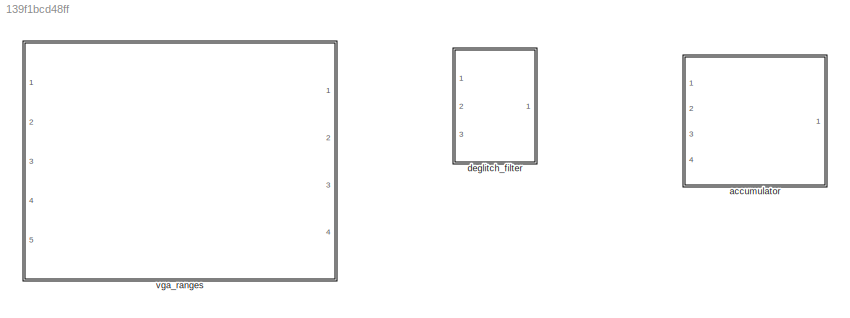
MODEL slx_139f1bcd48ff
KIND library
CONFIG AbsTol = auto
CONFIG EnableMultiTasking = off
CONFIG FixedStep = auto
CONFIG MaxStep = auto
CONFIG MinStep = auto
CONFIG RelTol = 1e-3
CONFIG SampleTimeConstraint = Unconstrained
CONFIG Solver = VariableStepAuto
CONFIG SolverName = VariableStepAuto
CONFIG StartTime = 0.0
CONFIG StopTime = 10.0
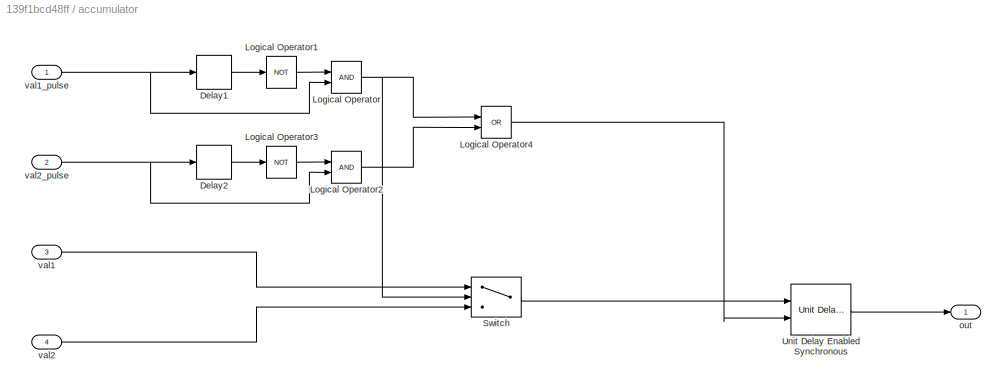
BLOCK [SubSystem] accumulator
  Ports = [4, 1]
  RequestExecContextInheritance = off
BLOCK [Delay] accumulator/Delay1
  DelayLength = 1
  InputPortMap = u0
  Ports = [1, 1]
BLOCK [Delay] accumulator/Delay2
  DelayLength = 1
  InputPortMap = u0
  Ports = [1, 1]
BLOCK [Logic] accumulator/Logical Operator
  AllPortsSameDT = off
  IconShape = distinctive
  OutDataTypeStr = boolean
  Ports = [2, 1]
BLOCK [Logic] accumulator/Logical Operator1
  AllPortsSameDT = off
  IconShape = distinctive
  Operator = NOT
  OutDataTypeStr = boolean
  Ports = [1, 1]
BLOCK [Logic] accumulator/Logical Operator2
  AllPortsSameDT = off
  IconShape = distinctive
  OutDataTypeStr = boolean
  Ports = [2, 1]
BLOCK [Logic] accumulator/Logical Operator3
  AllPortsSameDT = off
  IconShape = distinctive
  Operator = NOT
  OutDataTypeStr = boolean
  Ports = [1, 1]
BLOCK [Logic] accumulator/Logical Operator4
  AllPortsSameDT = off
  IconShape = distinctive
  Operator = OR
  OutDataTypeStr = boolean
  Ports = [2, 1]
BLOCK [Switch] accumulator/Switch
  InputSameDT = off
  SaturateOnIntegerOverflow = off
BLOCK [Reference] accumulator/Unit Delay Enabled Synchronous  REF=hdlsllib/Discrete/Unit Delay Enabled
Synchronous
  Ports = [2, 1]
  SourceBlock = hdlsllib/Discrete/Unit Delay Enabled\nSynchronous
  SourceProductBaseCode = SL
  SourceProductName = Simulink
  SourceType = Unit Delay Enabled Synchronous
BLOCK [Outport] accumulator/out
  IconDisplay = Port number
  VectorParamsAs1DForOutWhenUnconnected = off
BLOCK [Inport] accumulator/val1
  IconDisplay = Port number
  Port = 3
BLOCK [Inport] accumulator/val1_pulse
  IconDisplay = Port number
BLOCK [Inport] accumulator/val2
  IconDisplay = Port number
  Port = 4
BLOCK [Inport] accumulator/val2_pulse
  IconDisplay = Port number
  Port = 2
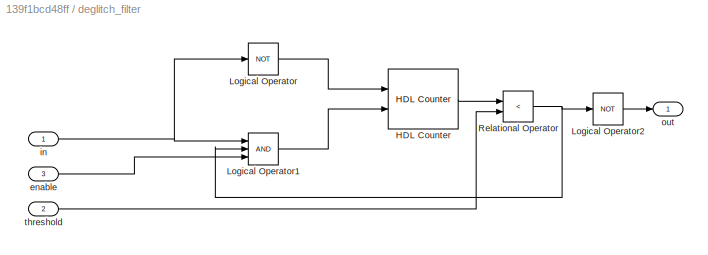
BLOCK [SubSystem] deglitch_filter
  Ports = [3, 1]
  RequestExecContextInheritance = off
BLOCK [Reference] deglitch_filter/HDL Counter  REF=hdlsllib/Sources/HDL Counter
  Ports = [2, 1]
  SourceBlock = hdlsllib/Sources/HDL Counter
  SourceProductBaseCode = SL
  SourceProductName = Simulink
  SourceType = HDL Counter
BLOCK [Logic] deglitch_filter/Logical Operator
  AllPortsSameDT = off
  IconShape = distinctive
  Operator = NOT
  OutDataTypeStr = boolean
  Ports = [1, 1]
BLOCK [Logic] deglitch_filter/Logical Operator1
  AllPortsSameDT = off
  IconShape = distinctive
  Inputs = 3
  OutDataTypeStr = boolean
  Ports = [3, 1]
BLOCK [Logic] deglitch_filter/Logical Operator2
  AllPortsSameDT = off
  IconShape = distinctive
  Operator = NOT
  OutDataTypeStr = boolean
  Ports = [1, 1]
BLOCK [RelationalOperator] deglitch_filter/Relational Operator
  InputSameDT = off
  Operator = <
  OutDataTypeStr = boolean
  Ports = [2, 1]
BLOCK [Inport] deglitch_filter/enable 
  IconDisplay = Port number
  Port = 3
BLOCK [Inport] deglitch_filter/in
  IconDisplay = Port number
BLOCK [Outport] deglitch_filter/out
  IconDisplay = Port number
  VectorParamsAs1DForOutWhenUnconnected = off
BLOCK [Inport] deglitch_filter/threshold
  IconDisplay = Port number
  Port = 2
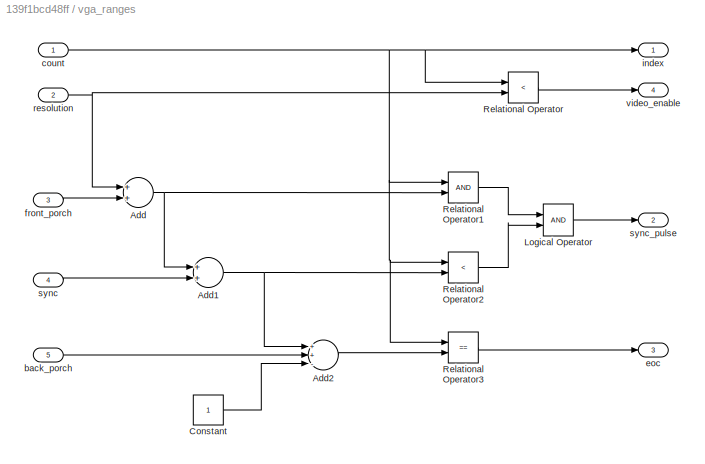
BLOCK [SubSystem] vga_ranges
  Ports = [5, 4]
  RequestExecContextInheritance = off
BLOCK [Sum] vga_ranges/Add
  InputSameDT = off
  OutDataTypeStr = Inherit: Inherit via internal rule
  Ports = [2, 1]
  SaturateOnIntegerOverflow = off
BLOCK [Sum] vga_ranges/Add1
  InputSameDT = off
  OutDataTypeStr = Inherit: Inherit via internal rule
  Ports = [2, 1]
  SaturateOnIntegerOverflow = off
BLOCK [Sum] vga_ranges/Add2
  InputSameDT = off
  Inputs = ++-
  OutDataTypeStr = Inherit: Inherit via internal rule
  Ports = [3, 1]
  SaturateOnIntegerOverflow = off
BLOCK [Constant] vga_ranges/Constant
  OutDataTypeStr = Inherit: Inherit via back propagation
  SampleTime = -1
BLOCK [Logic] vga_ranges/Logical Operator
  AllPortsSameDT = off
  IconShape = distinctive
  OutDataTypeStr = boolean
  Ports = [2, 1]
BLOCK [RelationalOperator] vga_ranges/Relational Operator
  InputSameDT = off
  Operator = <
  OutDataTypeStr = boolean
  Ports = [2, 1]
  RndMeth = Simplest
BLOCK [RelationalOperator] vga_ranges/Relational Operator1
  InputSameDT = off
  OutDataTypeStr = boolean
  Ports = [2, 1]
  RndMeth = Simplest
BLOCK [RelationalOperator] vga_ranges/Relational Operator2
  InputSameDT = off
  Operator = <
  OutDataTypeStr = boolean
  Ports = [2, 1]
  RndMeth = Simplest
BLOCK [RelationalOperator] vga_ranges/Relational Operator3
  InputSameDT = off
  Operator = ==
  OutDataTypeStr = boolean
  Ports = [2, 1]
  RndMeth = Simplest
BLOCK [Inport] vga_ranges/back_porch
  IconDisplay = Port number
  Port = 5
BLOCK [Inport] vga_ranges/count 
  IconDisplay = Port number
BLOCK [Outport] vga_ranges/eoc 
  IconDisplay = Port number
  Port = 3
BLOCK [Inport] vga_ranges/front_porch
  IconDisplay = Port number
  Port = 3
BLOCK [Outport] vga_ranges/index 
  IconDisplay = Port number
BLOCK [Inport] vga_ranges/resolution
  IconDisplay = Port number
  Port = 2
BLOCK [Inport] vga_ranges/sync 
  IconDisplay = Port number
  Port = 4
BLOCK [Outport] vga_ranges/sync_pulse 
  IconDisplay = Port number
  Port = 2
BLOCK [Outport] vga_ranges/video_enable
  IconDisplay = Port number
  Port = 4
LINE accumulator/Delay1:1 -> accumulator/Logical Operator1:1
LINE accumulator/Delay2:1 -> accumulator/Logical Operator3:1
LINE accumulator/Logical Operator1:1 -> accumulator/Logical Operator:1
LINE accumulator/Logical Operator2:1 -> accumulator/Logical Operator4:2
LINE accumulator/Logical Operator3:1 -> accumulator/Logical Operator2:1
LINE accumulator/Logical Operator4:1 -> accumulator/Unit Delay Enabled Synchronous:2
NET accumulator/Logical Operator:1 -> accumulator/Logical Operator4:1, accumulator/Switch:2
LINE accumulator/Switch:1 -> accumulator/Unit Delay Enabled Synchronous:1
LINE accumulator/Unit Delay Enabled Synchronous:1 -> accumulator/out:1
LINE accumulator/val1:1 -> accumulator/Switch:1
NET accumulator/val1_pulse:1 -> accumulator/Delay1:1, accumulator/Logical Operator:2
LINE accumulator/val2:1 -> accumulator/Switch:3
NET accumulator/val2_pulse:1 -> accumulator/Delay2:1, accumulator/Logical Operator2:2
LINE deglitch_filter/HDL Counter:1 -> deglitch_filter/Relational Operator:1
LINE deglitch_filter/Logical Operator1:1 -> deglitch_filter/HDL Counter:2
LINE deglitch_filter/Logical Operator2:1 -> deglitch_filter/out:1
LINE deglitch_filter/Logical Operator:1 -> deglitch_filter/HDL Counter:1
NET deglitch_filter/Relational Operator:1 -> deglitch_filter/Logical Operator1:2, deglitch_filter/Logical Operator2:1
LINE deglitch_filter/enable :1 -> deglitch_filter/Logical Operator1:3
NET deglitch_filter/in:1 -> deglitch_filter/Logical Operator1:1, deglitch_filter/Logical Operator:1
LINE deglitch_filter/threshold:1 -> deglitch_filter/Relational Operator:2
NET vga_ranges/Add1:1 -> vga_ranges/Add2:1, vga_ranges/Relational Operator2:2
LINE vga_ranges/Add2:1 -> vga_ranges/Relational Operator3:2
NET vga_ranges/Add:1 -> vga_ranges/Add1:1, vga_ranges/Relational Operator1:2
LINE vga_ranges/Constant:1 -> vga_ranges/Add2:3
LINE vga_ranges/Logical Operator:1 -> vga_ranges/sync_pulse :1
LINE vga_ranges/Relational Operator1:1 -> vga_ranges/Logical Operator:1
LINE vga_ranges/Relational Operator2:1 -> vga_ranges/Logical Operator:2
LINE vga_ranges/Relational Operator3:1 -> vga_ranges/eoc :1
LINE vga_ranges/Relational Operator:1 -> vga_ranges/video_enable:1
LINE vga_ranges/back_porch:1 -> vga_ranges/Add2:2
NET vga_ranges/count :1 -> vga_ranges/Relational Operator1:1, vga_ranges/Relational Operator2:1, vga_ranges/Relational Operator3:1, vga_ranges/Relational Operator:1, vga_ranges/index :1
LINE vga_ranges/front_porch:1 -> vga_ranges/Add:2
NET vga_ranges/resolution:1 -> vga_ranges/Add:1, vga_ranges/Relational Operator:2
LINE vga_ranges/sync :1 -> vga_ranges/Add1:2
note: NET lines group one-source signal fan-out (src -> all destinations, sorted); 1:1 wires keep LINE
